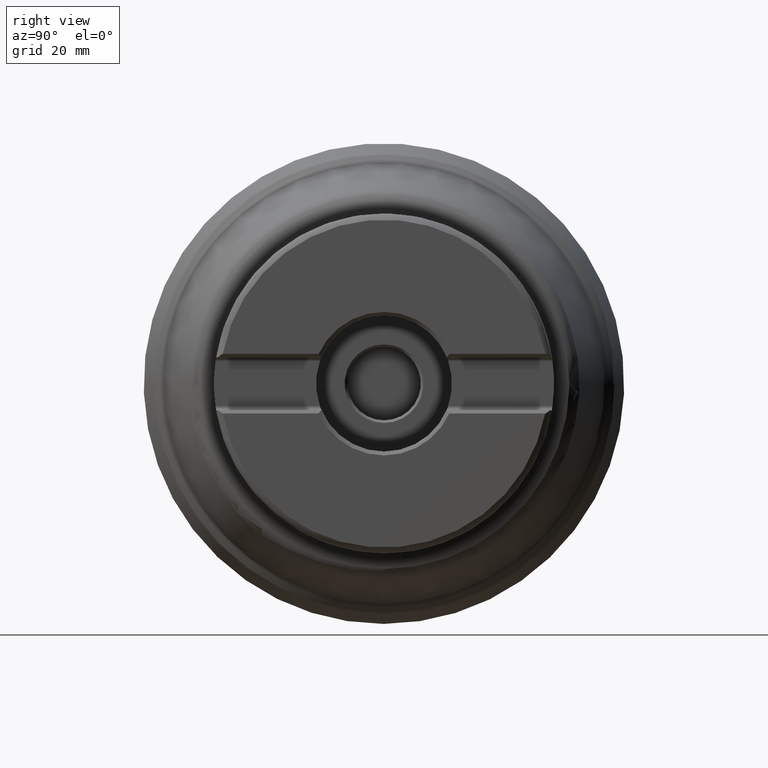
[diagram: clean part render]
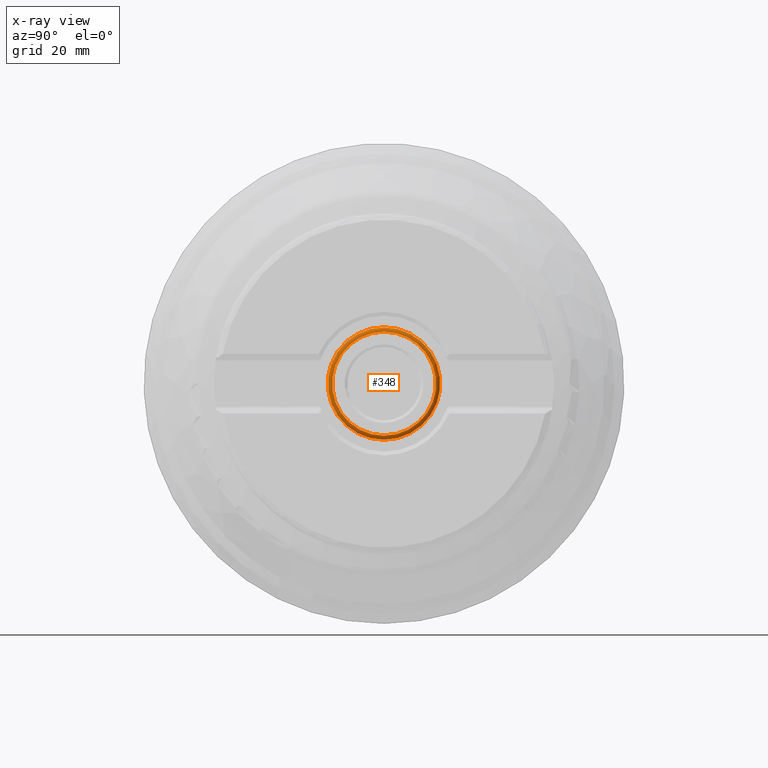
[diagram: x-ray — body ghosted, one internal face saturated and labeled with its STEP entity id]
A machine part, right view, then the same camera in x-ray: the body is ghosted and one INTERNAL B-rep face — a face not visible from any outside direction — is saturated and labeled: STEP entity #348.
In plain terms, the highlighted toroidal blend (fillet) surface has major radius 9.7 mm and minor (blend) radius 0.8 mm.
Its self-contained STEP definition (entity closure, byte-faithful):
#263=FACE_BOUND('',#462,.T.);
#264=FACE_BOUND('',#463,.T.);
#348=ADVANCED_FACE('',(#263,#264),#387,.F.);
#387=TOROIDAL_SURFACE('',#1105,9.7,0.8);
#462=EDGE_LOOP('',(#701));
#463=EDGE_LOOP('',(#702));
#701=ORIENTED_EDGE('',*,*,#944,.F.);
#702=ORIENTED_EDGE('',*,*,#908,.F.);
#818=VERTEX_POINT('',#1603);
#840=VERTEX_POINT('',#1759);
#908=EDGE_CURVE('',#818,#818,#996,.T.);
#944=EDGE_CURVE('',#840,#840,#1004,.T.);
#996=CIRCLE('',#1063,10.5);
#1004=CIRCLE('',#1089,9.7);
#1063=AXIS2_PLACEMENT_3D('',#1602,#1205,#1206);
#1089=AXIS2_PLACEMENT_3D('',#1758,#1273,#1274);
#1105=AXIS2_PLACEMENT_3D('',#1783,#1305,#1306);
#1205=DIRECTION('',(1.,1.4432899320127E-15,-6.66952178715043E-31));
#1206=DIRECTION('',(0.,0.,-1.));
#1273=DIRECTION('',(-1.,-1.4432899320127E-15,6.66952178715043E-31));
#1274=DIRECTION('',(0.,0.,-1.));
#1305=DIRECTION('',(-1.,-1.4432899320127E-15,6.66952178715043E-31));
#1306=DIRECTION('',(0.,0.,-1.));
#1602=CARTESIAN_POINT('',(17.,2.4535928844216E-14,-1.13381870381557E-29));
#1603=CARTESIAN_POINT('',(17.,2.4535928844216E-14,-10.5));
#1758=CARTESIAN_POINT('',(17.8,2.56905607898261E-14,-1.18717487811278E-29));
#1759=CARTESIAN_POINT('',(17.8,2.56905607898261E-14,-9.7));
#1783=CARTESIAN_POINT('',(17.,2.4535928844216E-14,-1.13381870381557E-29));